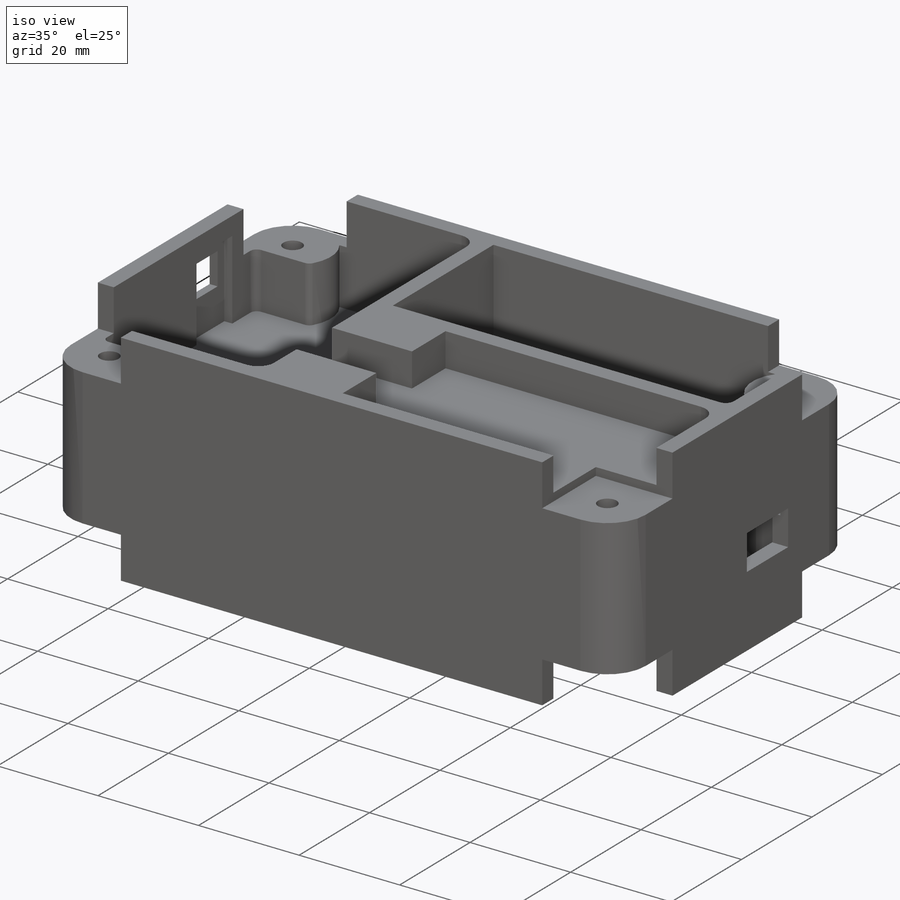
[diagram: iso view]
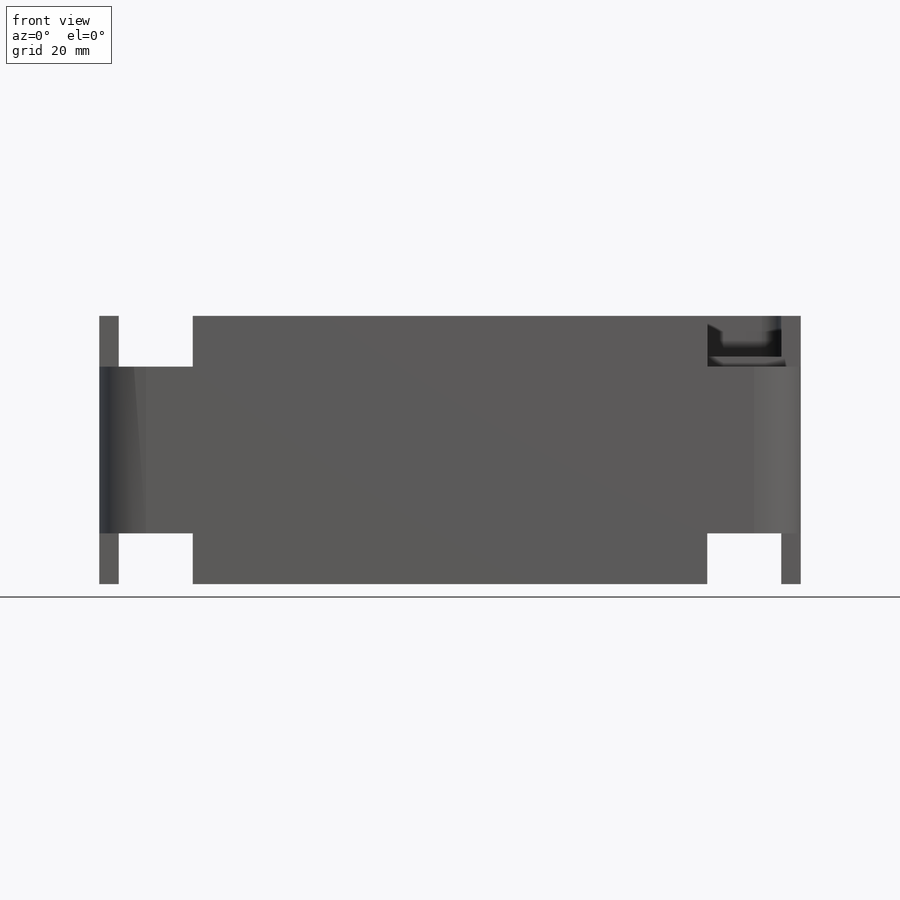
[diagram: front view]
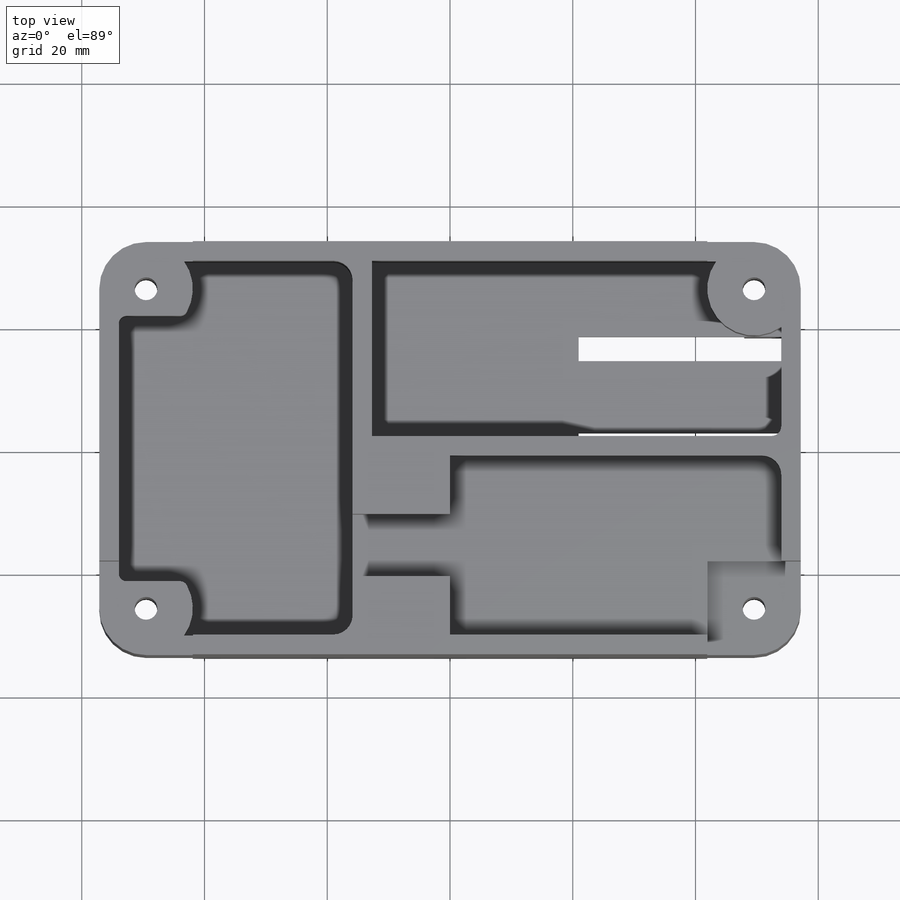
[diagram: top view]
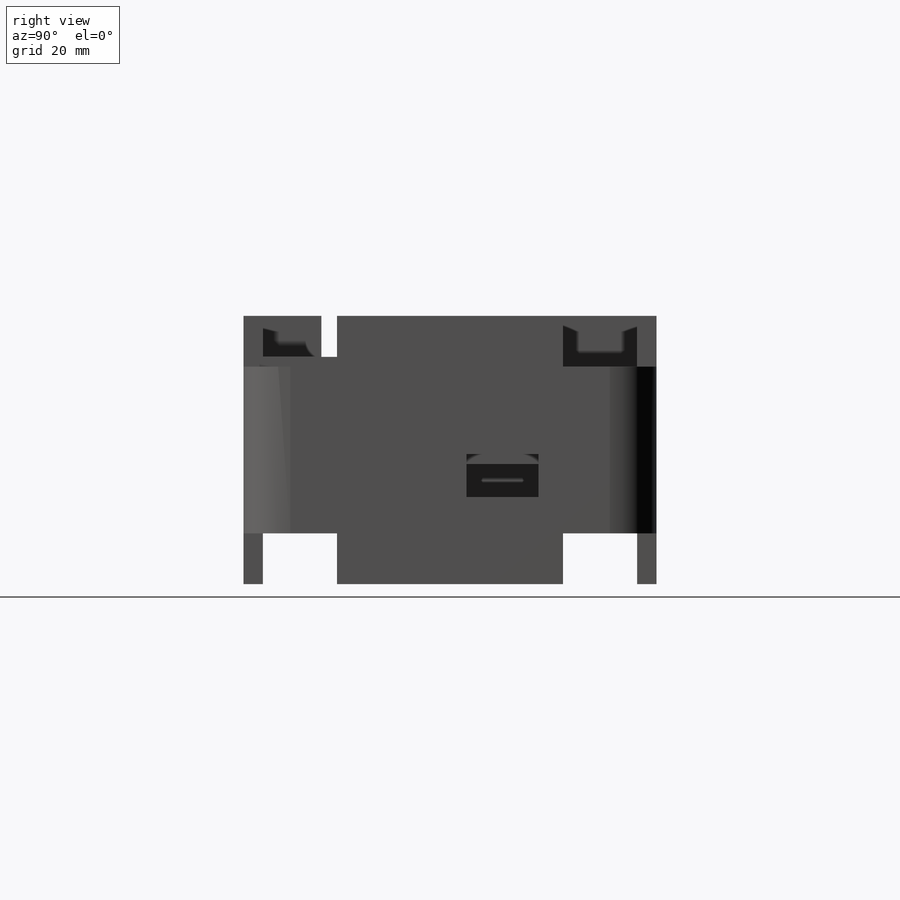
[diagram: right view]
SOLIDWORKS PART (.sldprt)
format: sldprt  version: not decoded by parser v0  size: 1,400,832 bytes
history: native  units: mm
features: sketch x53, cut_extrude x27, extrude x26, fillet x10, plane x5, material x1 (+13 scaffold rows collapsed)
feature tree (135):
  scaffold x13  (default folders/planes/origin — collapsed)
  material  "Custom Plastic"
  sketch  "Sketch1"  dims[D1=67.31mm D2=114.3mm D3=3.175mm]
  extrude  "Boss-Extrude1"  Depth=16.764mm
  fillet  "Fillet2"  Radius=7.62mm
  sketch  "Sketch3"  dims[D1=10.16mm D2=10.16mm]
  extrude  "Boss-Extrude3"  [1 undecoded]
  sketch  "Sketch5"  dims[D1=10.16mm D2=10.16mm]
  extrude  "Boss-Extrude4"  [1 undecoded]
  sketch  "Sketch6"  dims[D1=10.16mm D2=10.16mm]
  extrude  "Boss-Extrude5"  [1 undecoded]
  sketch  "Sketch7"  dims[D1=10.16mm D2=10.16mm]
  extrude  "Boss-Extrude6"  [1 undecoded]
  plane  "Plane1"  Offset=19.3675mm
  sketch  "Sketch12"  dims[D1=3.175mm D2=3.175mm D3=28.575mm D4=66.675mm]
  extrude  "Boss-Extrude7"  [1 undecoded]
  sketch  "Sketch13"  dims[D3=7.62mm D1=10.16mm D2=10.16mm]
  extrude  "Boss-Extrude8"  Depth=3.175mm
  sketch  "Sketch16"  dims[D5=7.62mm D1=10.16mm D2=10.16mm D3=10.16mm D4=10.16mm]
  extrude  "Boss-Extrude9"  Depth=3.175mm
  sketch  "Sketch19"  dims[D1=6.35mm D2=15.24mm D3=12.7mm]
  cut_extrude  "Cut-Extrude7"  [1 undecoded]
  sketch  "Sketch25"  dims[D1=34.6075mm D2=3.175mm]
  extrude  "Boss-Extrude14"  Depth=3.175mm
  plane  "Plane2"
  plane  "Plane3"
  sketch  "Sketch30"  dims[D1=3.175mm D2=22.86mm D3=25.4mm]
  extrude  "Boss-Extrude22"  Depth=1.5875mm
  sketch  "Sketch31"  dims[D1=3.175mm D2=31.75mm]
  extrude  "Boss-Extrude23"  Depth=1.5875mm
  sketch  "Sketch32"  dims[D1=8.89mm]
  extrude  "Boss-Extrude24"  Depth=3.175mm
  plane  "Plane4"  Offset=6.6675mm
  sketch  "Sketch37"
  extrude  "Boss-Extrude27"  Depth=3.175mm
  sketch  "Sketch38"  dims[D1=37.1475mm D2=9.525mm]
  extrude  "Boss-Extrude28"  [1 undecoded]
  sketch  "Sketch39"  dims[D1=9.525mm]
  extrude  "Boss-Extrude29"  [1 undecoded]
  fillet  "Fillet17"  Radius=3.175mm
  fillet  "Fillet18"  Radius=1.5875mm
  fillet  "Fillet22"  Radius=3.175mm
  fillet  "Fillet29"  Radius=3.175mm
  plane  "Plane5"  Offset=1.5875mm
  sketch  "Sketch44"  dims[D1=1.7018mm]
  cut_extrude  "Cut-Extrude13"  Depth=1.5875mm
  sketch  "Sketch46"  dims[D1=6.985mm D2=11.7475mm]
  cut_extrude  "Cut-Extrude15"  [1 undecoded]
  sketch  "Sketch47"  dims[D1=1.5875mm]
  extrude  "Boss-Extrude31"  [1 undecoded]
  sketch  "Sketch55"  dims[D1=6.35mm]
  extrude  "Boss-Extrude32"  [1 undecoded]
  sketch  "Sketch56"  dims[D1=1.5875mm D2=1.5875mm]
  cut_extrude  "Cut-Extrude21"  Depth=6.35mm
  sketch  "Sketch61"
  extrude  "Boss-Extrude35"  [1 undecoded]
  sketch  "Sketch63"  dims[D1=2.54mm]
  extrude  "Boss-Extrude37"  [1 undecoded]
  sketch  "Sketch64"  dims[D1=6.35mm D2=10.16mm]
  extrude  "Boss-Extrude38"  [1 undecoded]
  sketch  "Sketch65"  dims[D1=6.35mm D2=17.78mm D3=12.7mm D4=12.7mm D5=17.78mm]
  extrude  "Boss-Extrude39"  [1 undecoded]
  sketch  "Sketch66"
  cut_extrude  "Cut-Extrude23"  Depth=3.175mm
  sketch  "Sketch67"
  cut_extrude  "Cut-Extrude24"  Depth=3.175mm
  sketch  "Sketch68"
  cut_extrude  "Cut-Extrude25"  Depth=3.175mm
  sketch  "Sketch69"
  cut_extrude  "Cut-Extrude26"  Depth=3.175mm
  sketch  "Sketch70"
  cut_extrude  "Cut-Extrude27"  Depth=3.175mm
  sketch  "Sketch71"
  cut_extrude  "Cut-Extrude28"  Depth=3.175mm
  sketch  "Sketch72"
  cut_extrude  "Cut-Extrude29"  Depth=3.175mm
  sketch  "Sketch73"
  cut_extrude  "Cut-Extrude30"  Depth=3.175mm
  sketch  "Sketch74"  dims[D1=3.7084mm]
  cut_extrude  "Cut-Extrude31"  [1 undecoded]
  sketch  "Sketch75"
  extrude  "Boss-Extrude40"  [1 undecoded]
  sketch  "Sketch76"
  cut_extrude  "Cut-Extrude32"  [1 undecoded]
  sketch  "Sketch80"  dims[D1=12.7mm]
  extrude  "Boss-Extrude41"  [1 undecoded]
  sketch  "Sketch81"
  extrude  "Boss-Extrude42"  [1 undecoded]
  sketch  "Sketch82"  dims[c1.D1=15.748mm c1.D2=15.748mm c1.D3=15.748mm c1.D4=15.748mm c2.D1=15.748mm c2.D2=10.16mm c2.D3=18.415mm]
  cut_extrude  "Cut-Extrude34"  Depth=1.5875mm
  sketch  "Sketch83"  dims[D1=6.35mm D2=6.35mm D3=2.413mm]
  cut_extrude  "Cut-Extrude35"  [1 undecoded]
  sketch  "Sketch88"  dims[D1=5.08mm D2=19.05mm]
  extrude  "Boss-Extrude43"  Depth=4.365625mm
  fillet  "Fillet32"  Radius=3.175mm
  fillet  "Fillet33"  Radius=3.175mm
  sketch  "Sketch89"  dims[D1=2.54mm D2=2.54mm D3=12.7mm]
  cut_extrude  "Cut-Extrude40"  [1 undecoded]
  fillet  "Fillet34"  Radius=1.27mm
  fillet  "Fillet35"  Radius=1.27mm
  sketch  "Sketch90"  dims[D2=6.6675mm D1=~10.95375mm]
  cut_extrude  "Cut-Extrude41"  [1 undecoded]
  sketch  "Sketch91"
  cut_extrude  "Cut-Extrude42"  [1 undecoded]
  sketch  "Sketch92"  dims[D1=6.35mm D2=3.556mm]
  extrude  "Boss-Extrude44"  Depth=5.08mm
  sketch  "Sketch94"  dims[D1=2.54mm D2=2.54mm D3=12.7mm]
  cut_extrude  "Cut-Extrude43"  [1 undecoded]
  fillet  "Fillet36"  Radius=1.27mm
  sketch  "Sketch95"  dims[D1=7.62mm D2=7.62mm D3=15.2654mm]
  cut_extrude  "Cut-Extrude44"  Depth=11.43mm
  sketch  "Sketch97"  dims[D1=7.62mm D2=7.62mm]
  cut_extrude  "Cut-Extrude45"  Depth=11.43mm
  sketch  "Sketch98"
  cut_extrude  "Cut-Extrude46"  Depth=5.08mm
  sketch  "Sketch99"
  cut_extrude  "Cut-Extrude47"  Depth=5.08mm
  sketch  "Sketch100"
  cut_extrude  "Cut-Extrude50"  Depth=5.08mm
  sketch  "Sketch102"
  cut_extrude  "Cut-Extrude51"  Depth=5.08mm
  sketch  "Sketch103"
  cut_extrude  "Cut-Extrude52"  Depth=5.08mm
decode coverage: 72 of 116 modeling features carry decoded parameters
note: ~ marks probable driven/reference dimensions
note: 25 parameter values undecoded
summary: no parameter record found for 25 features
note: suppression state not decoded; provenance and decode notes live in map.json
